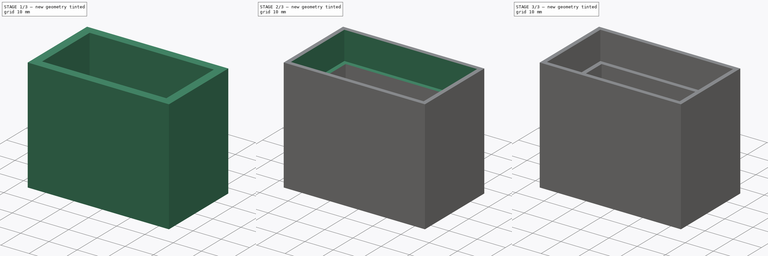
[diagram: build sequence overview — one tinted view per stage of 3, left to right]
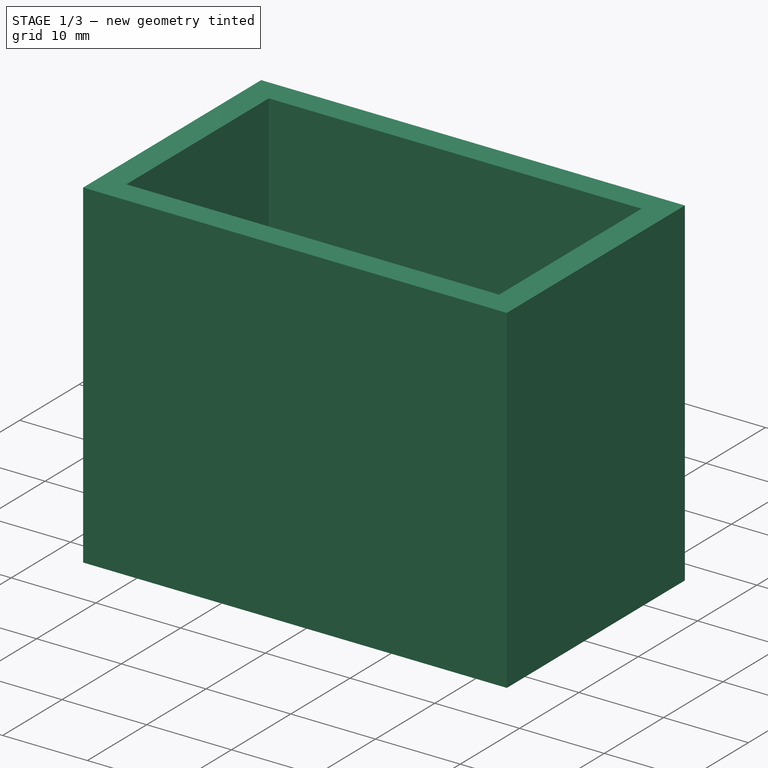
[diagram: stage 1 of 3 — iso view after this stage's code; geometry added in this stage tinted green]
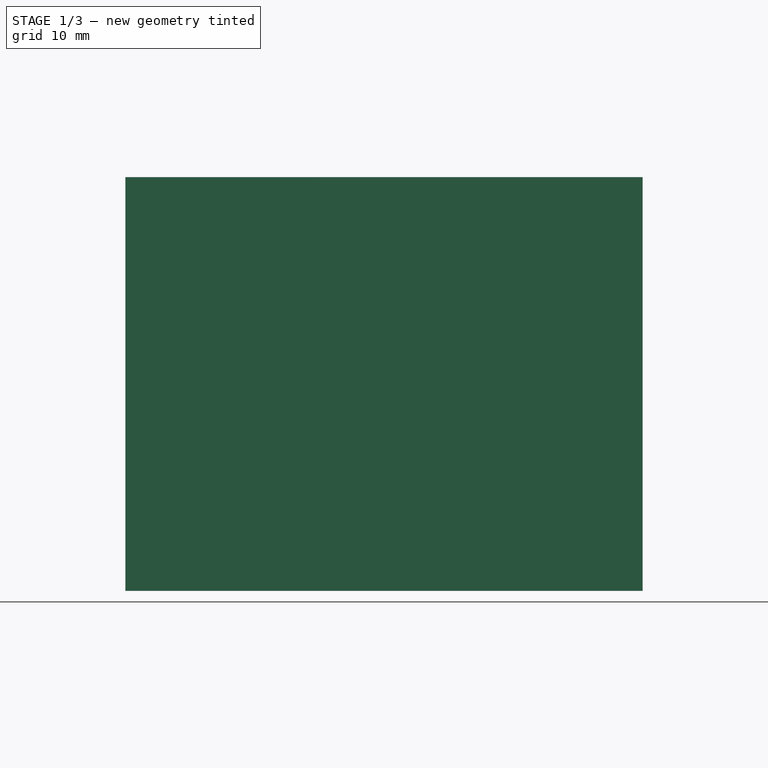
[diagram: stage 1 of 3 — front view after this stage's code; geometry added in this stage tinted green]
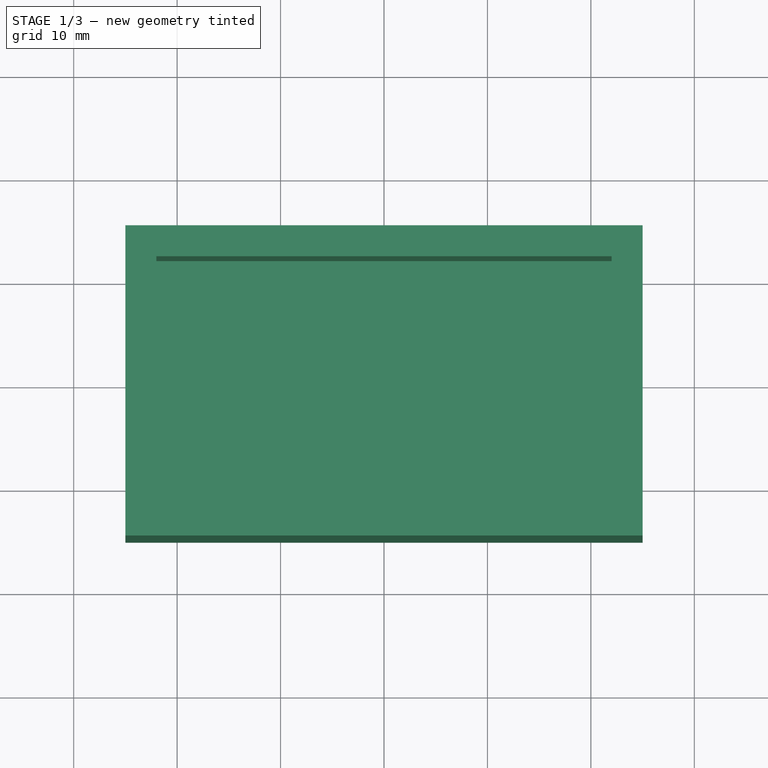
[diagram: stage 1 of 3 — top view after this stage's code; geometry added in this stage tinted green]
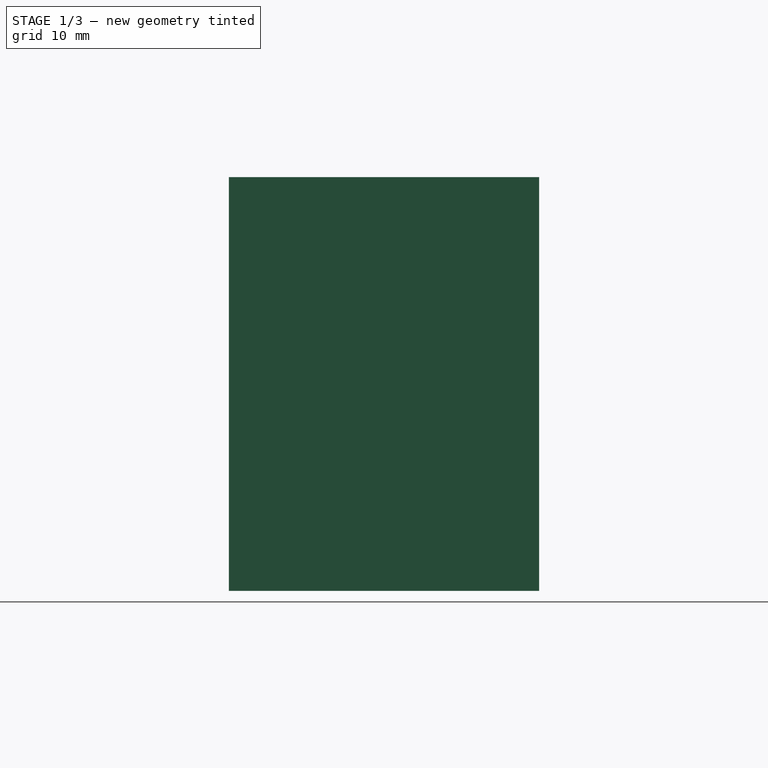
[diagram: stage 1 of 3 — right view after this stage's code; geometry added in this stage tinted green]
FCSTD DOCUMENT  (FreeCAD 0.17R13541 (Git))
Label: boite
License: All rights reserved
LicenseURL: http://en.wikipedia.org/wiki/All_rights_reserved
objects: Sketcher::SketchObject×5, Part::Mirroring×3, PartDesign::Pad×2, PartDesign::Pocket×2, PartDesign::Body×1, App::DocumentObjectGroup×1
note: 17 computed .brp shape members not serialized (recipe doc carries the construction recipe); baked Part::Feature solids carry a one-line shape summary decoded from their .brp

FEATURE [Sketcher::SketchObject] Sketch
  MapMode = 5
  Support = -> [XY_Plane]
  sketch-geometry (4):
    g0: LineSegment StartX=-25 StartY=15 StartZ=0 EndX=25 EndY=15 EndZ=0
    g1: LineSegment StartX=25 StartY=15 StartZ=0 EndX=25 EndY=-15 EndZ=0
    g2: LineSegment StartX=25 StartY=-15 StartZ=0 EndX=-25 EndY=-15 EndZ=0
    g3: LineSegment StartX=-25 StartY=-15 StartZ=0 EndX=-25 EndY=15 EndZ=0
  constraints (12):
    c: Coincident(g0,g1)
    c: Coincident(g1,g2)
    c: Coincident(g2,g3)
    c: Coincident(g3,g0)
    c: Horizontal(g0)
    c: Horizontal(g2)
    c: Vertical(g1)
    c: Vertical(g3)
    c: DistanceX(g0,g0) = 50
    c: DistanceY(g1,g1) = 30
    c: Symmetric(g0,g0,g-2)
    c: Symmetric(g0,g1,g-1)
FEATURE [PartDesign::Pad] Pad  label="Dessous ext"
  Length = 40
  Length2 = 100
  Profile = -> Sketch
  Type = 0
FEATURE [Sketcher::SketchObject] Sketch001
  MapMode = 5
  Support = -> [XY_Plane]
  sketch-geometry (4):
    g0: LineSegment StartX=-22 StartY=12 StartZ=0 EndX=22 EndY=12 EndZ=0
    g1: LineSegment StartX=22 StartY=12 StartZ=0 EndX=22 EndY=-12 EndZ=0
    g2: LineSegment StartX=22 StartY=-12 StartZ=0 EndX=-22 EndY=-12 EndZ=0
    g3: LineSegment StartX=-22 StartY=-12 StartZ=0 EndX=-22 EndY=12 EndZ=0
  constraints (12):
    c: Coincident(g0,g1)
    c: Coincident(g1,g2)
    c: Coincident(g2,g3)
    c: Coincident(g3,g0)
    c: Horizontal(g0)
    c: Horizontal(g2)
    c: Vertical(g1)
    c: Vertical(g3)
    c: DistanceX(g0,g0) = 44
    c: DistanceY(g1,g1) = 24
    c: Symmetric(g0,g0,g-2)
    c: Symmetric(g0,g1,g-1)
FEATURE [Sketcher::SketchObject] Sketch002
  MapMode = 5
  Placement = pos=(0,0,40) rot=(0,0,1;0rad)
  Support = -> [Pad]
  sketch-geometry (4):
    g0: LineSegment StartX=-22 StartY=12 StartZ=0 EndX=22 EndY=12 EndZ=0
    g1: LineSegment StartX=22 StartY=12 StartZ=0 EndX=22 EndY=-12 EndZ=0
    g2: LineSegment StartX=22 StartY=-12 StartZ=0 EndX=-22 EndY=-12 EndZ=0
    g3: LineSegment StartX=-22 StartY=-12 StartZ=0 EndX=-22 EndY=12 EndZ=0
  constraints (12):
    c: Coincident(g0,g1)
    c: Coincident(g1,g2)
    c: Coincident(g2,g3)
    c: Coincident(g3,g0)
    c: Horizontal(g0)
    c: Horizontal(g2)
    c: Vertical(g1)
    c: Vertical(g3)
    c: DistanceY(g1,g1) = 24
    c: DistanceX(g0,g0) = 44
    c: Symmetric(g0,g0,g-2)
    c: Symmetric(g0,g1,g-1)
FEATURE [PartDesign::Pocket] Pocket
  BaseFeature = -> Pad
  Length = 27
  Length2 = 100
  Profile = -> Sketch002
  Type = 0
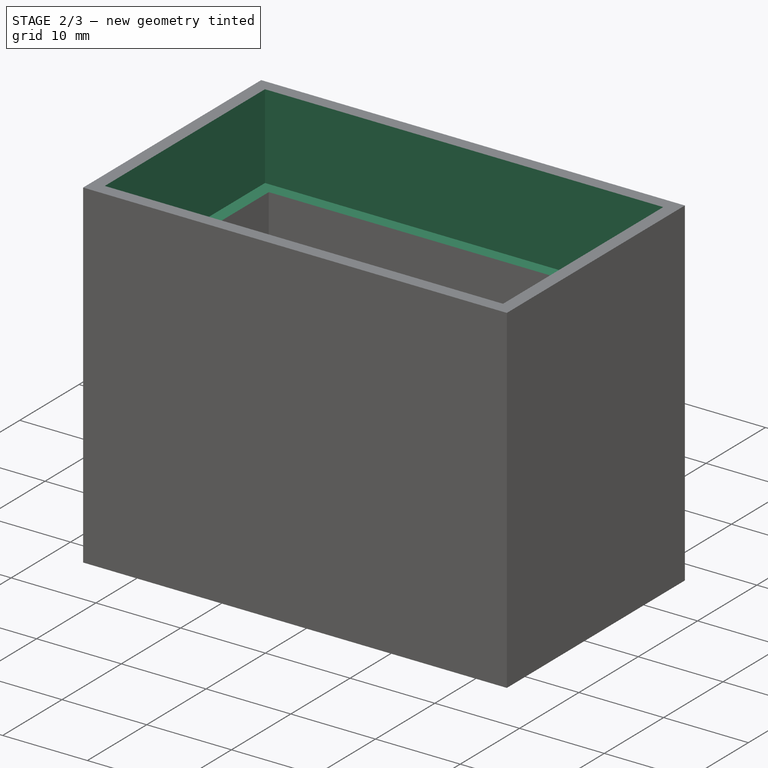
[diagram: stage 2 of 3 — iso view after this stage's code; geometry added in this stage tinted green]
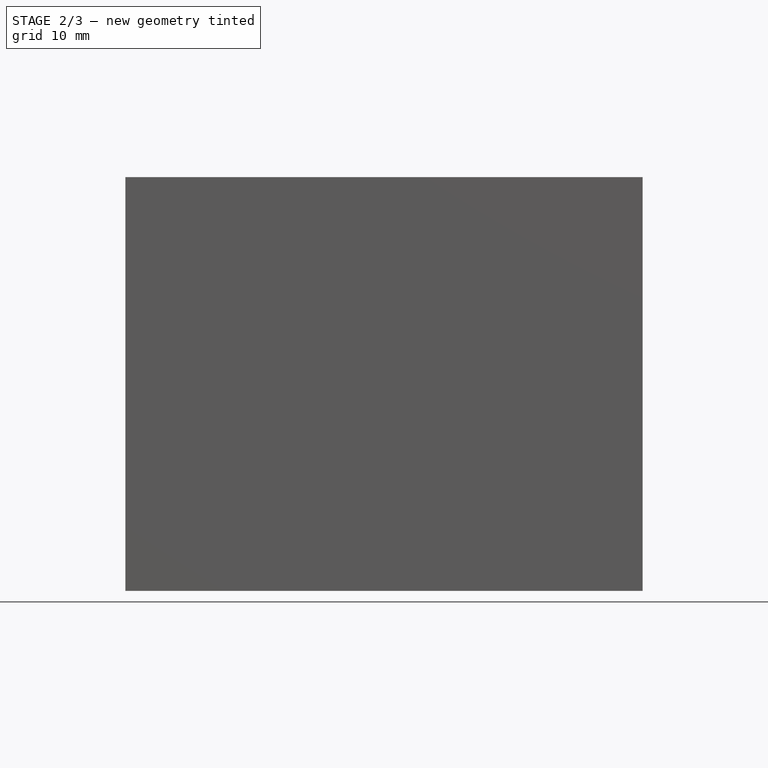
[diagram: stage 2 of 3 — front view after this stage's code; geometry added in this stage tinted green]
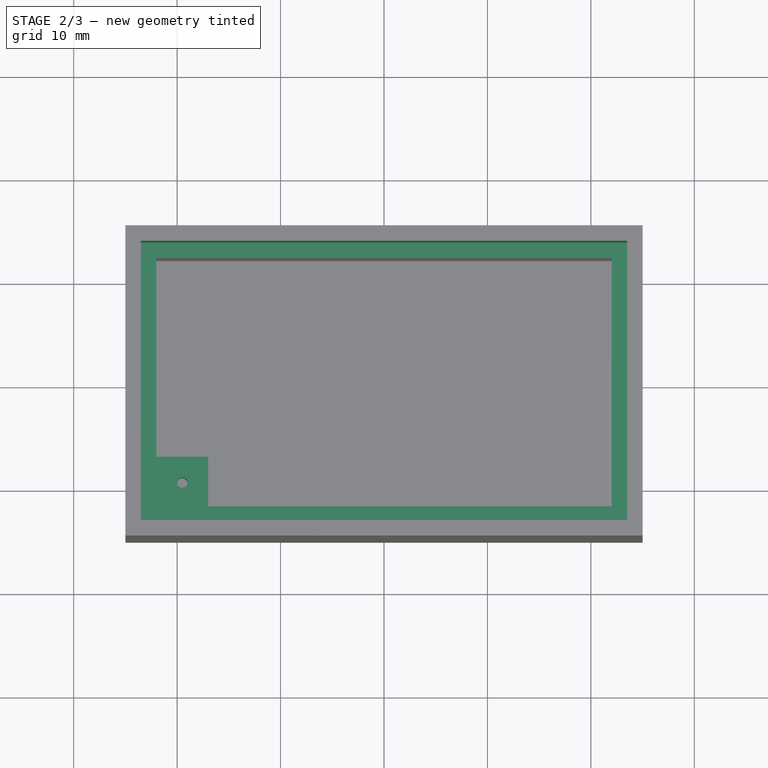
[diagram: stage 2 of 3 — top view after this stage's code; geometry added in this stage tinted green]
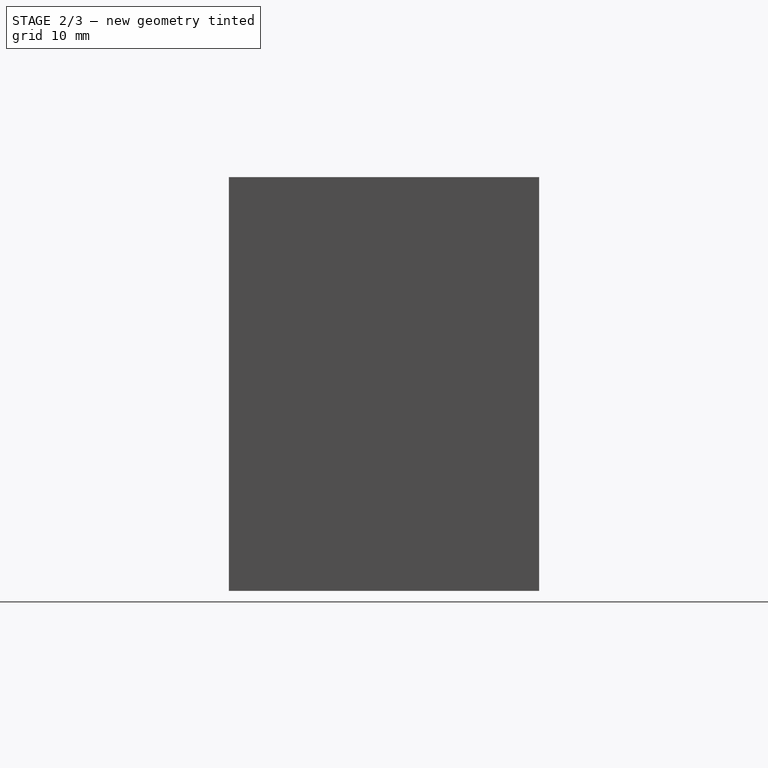
[diagram: stage 2 of 3 — right view after this stage's code; geometry added in this stage tinted green]
FEATURE [Sketcher::SketchObject] Sketch003
  MapMode = 5
  Placement = pos=(0,0,40) rot=(0,0,1;0rad)
  Support = -> [Pocket]
  sketch-geometry (4):
    g0: LineSegment StartX=-23.5 StartY=13.5 StartZ=0 EndX=23.5 EndY=13.5 EndZ=0
    g1: LineSegment StartX=23.5 StartY=13.5 StartZ=0 EndX=23.5 EndY=-13.5 EndZ=0
    g2: LineSegment StartX=23.5 StartY=-13.5 StartZ=0 EndX=-23.5 EndY=-13.5 EndZ=0
    g3: LineSegment StartX=-23.5 StartY=-13.5 StartZ=0 EndX=-23.5 EndY=13.5 EndZ=0
  constraints (12):
    c: Coincident(g0,g1)
    c: Coincident(g1,g2)
    c: Coincident(g2,g3)
    c: Coincident(g3,g0)
    c: Horizontal(g0)
    c: Horizontal(g2)
    c: Vertical(g1)
    c: Vertical(g3)
    c: DistanceX(g0,g0) = 47
    c: DistanceY(g1,g1) = 27
    c: Symmetric(g0,g0,g-2)
    c: Symmetric(g0,g1,g-1)
FEATURE [PartDesign::Pocket] Pocket001
  BaseFeature = -> Pocket
  Length = 10
  Length2 = 100
  Profile = -> Sketch003
  Type = 0
FEATURE [PartDesign::Body] Body
  Group = -> [Sketch,Pad,Sketch001,Sketch002,Pocket,Sketch003,Pocket001]
  Origin = -> Origin
  Tip = -> Pocket001
FEATURE [Sketcher::SketchObject] Sketch005
  MapMode = 5
  Placement = pos=(0,0,13) rot=(0,0,1;0rad)
  Support = -> [Pocket001]
  sketch-geometry (8):
    g0: LineSegment StartX=-22 StartY=12 StartZ=0 EndX=-17 EndY=12 EndZ=0
    g1: LineSegment StartX=-17 StartY=12 StartZ=0 EndX=-17 EndY=7 EndZ=0
    g2: LineSegment StartX=-17 StartY=7 StartZ=0 EndX=-22 EndY=7 EndZ=0
    g3: LineSegment StartX=-22 StartY=7 StartZ=0 EndX=-22 EndY=12 EndZ=0
    g4: LineSegment [constr] StartX=-22 StartY=12 StartZ=0 EndX=-17 EndY=7 EndZ=0
    g5: LineSegment [constr] StartX=-17 StartY=12 StartZ=0 EndX=-22 EndY=7 EndZ=0
    g6: GeomPoint X=-19.5 Y=9.5 Z=0
    g7: Circle CenterX=-19.5 CenterY=9.5 CenterZ=0 NormalX=0 NormalY=0 NormalZ=1 AngleXU=0 Radius=0.5
  constraints (20):
    c: Coincident(g0,g1)
    c: Coincident(g1,g2)
    c: Coincident(g2,g3)
    c: Coincident(g3,g0)
    c: Horizontal(g0)
    c: Horizontal(g2)
    c: Vertical(g1)
    c: Vertical(g3)
    c: DistanceY(g1,g1) = 5
    c: DistanceX(g0,g0) = 5
    c: Coincident(g4,g0)
    c: Coincident(g4,g1)
    c: Coincident(g5,g0)
    c: Coincident(g5,g2)
    c: PointOnObject(g6,g4)
    c: PointOnObject(g6,g5)
    c: Coincident(g7,g6)
    c: Radius(g7) = 0.5
    c: DistanceX(g0,g-1) = 22
    c: DistanceY(g-1,g0) = 12
FEATURE [PartDesign::Pad] Pad001  label="support"
  BaseFeature = -> Pocket001
  Length = 5
  Length2 = 100
  Profile = -> Sketch005
  Type = 0
FEATURE [Part::Mirroring] Part__Mirroring002  label="support (Mirror #3)"
  Base = (0,0,0)
  Normal = (0,1,0)
  Source = -> Pad001
FEATURE [App::DocumentObjectGroup] Groupe  label="supports"
  Group = -> [Part__Mirroring001,Part__Mirroring002,Pad001,Sketch005]
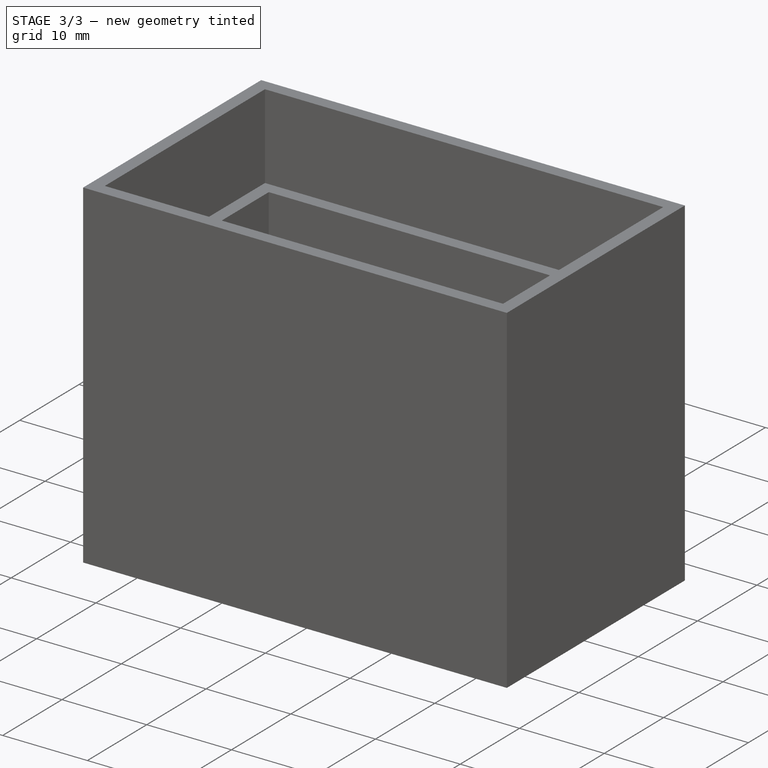
[diagram: stage 3 of 3 — iso view after this stage's code; geometry added in this stage tinted green]
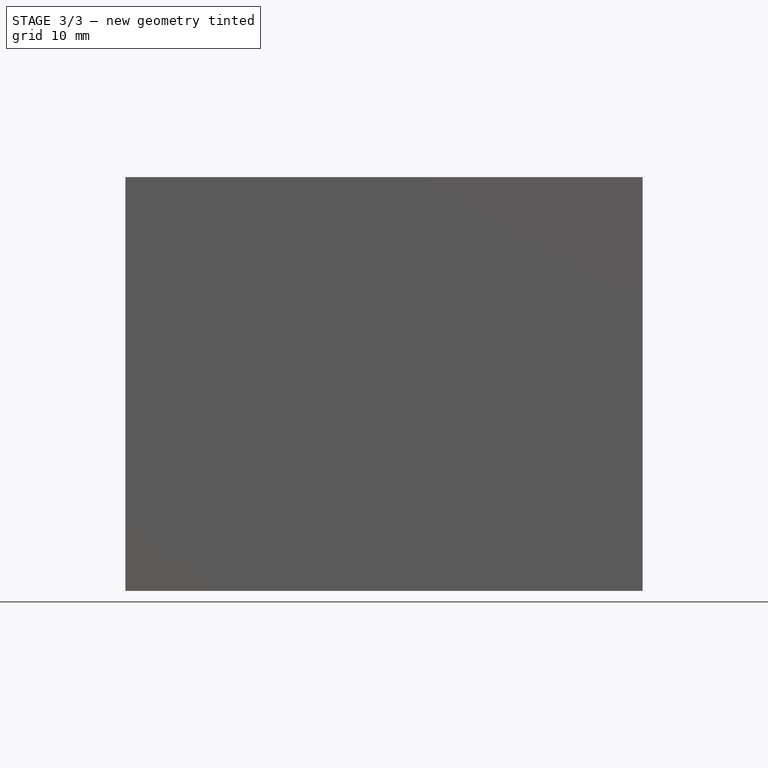
[diagram: stage 3 of 3 — front view after this stage's code; geometry added in this stage tinted green]
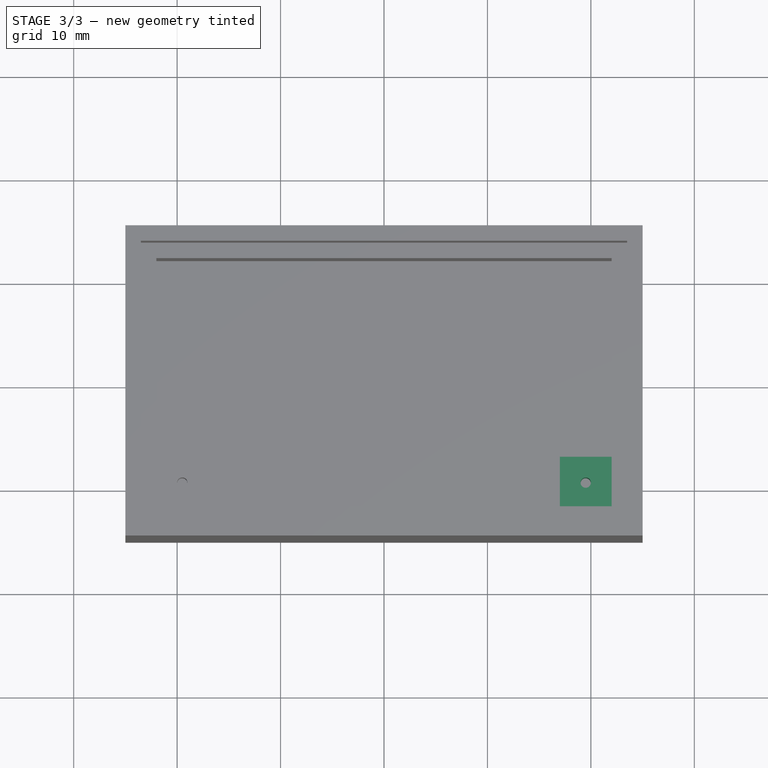
[diagram: stage 3 of 3 — top view after this stage's code; geometry added in this stage tinted green]
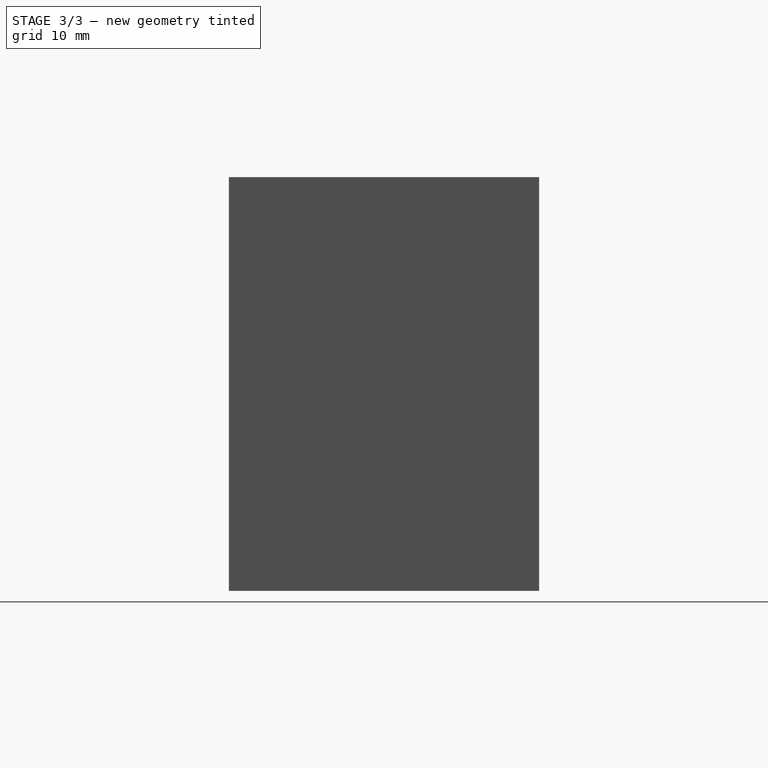
[diagram: stage 3 of 3 — right view after this stage's code; geometry added in this stage tinted green]
FEATURE [Part::Mirroring] Part__Mirroring  label="support (Mirror #1)"
  Base = (0,0,0)
  Normal = (1,0,0)
  Source = -> Pad001
FEATURE [Part::Mirroring] Part__Mirroring001  label="support (Mirror #2)"
  Base = (0,0,0)
  Normal = (0,1,0)
  Source = -> Part__Mirroring
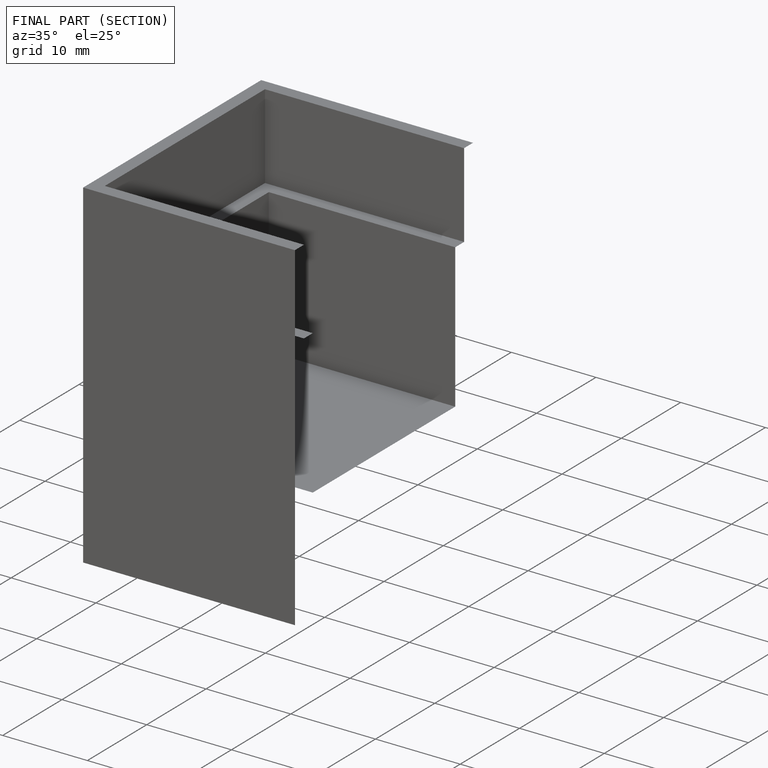
[diagram: finished part — half-section view (interior)]
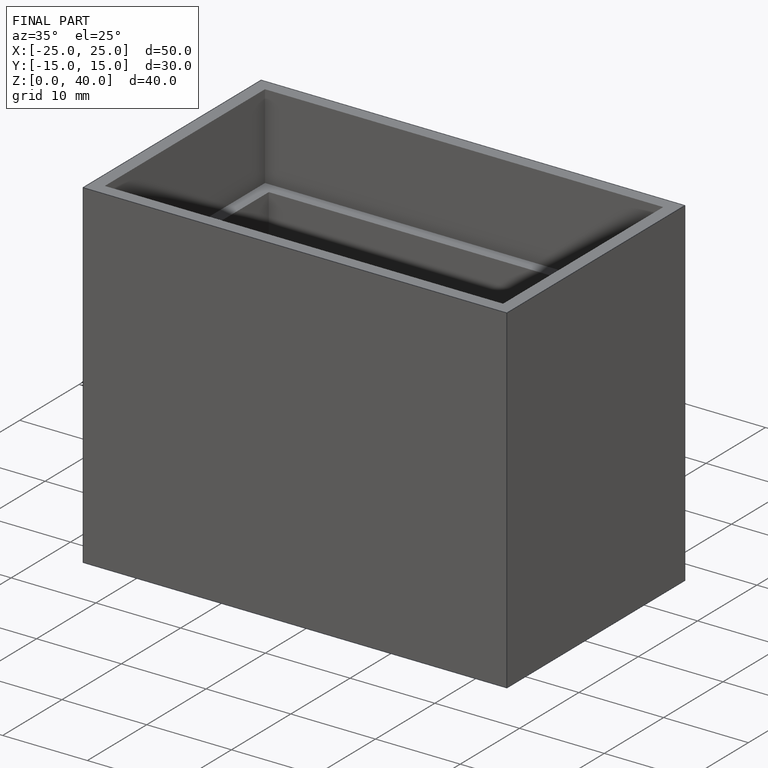
[diagram: finished part — iso view with bounding-box wireframe]
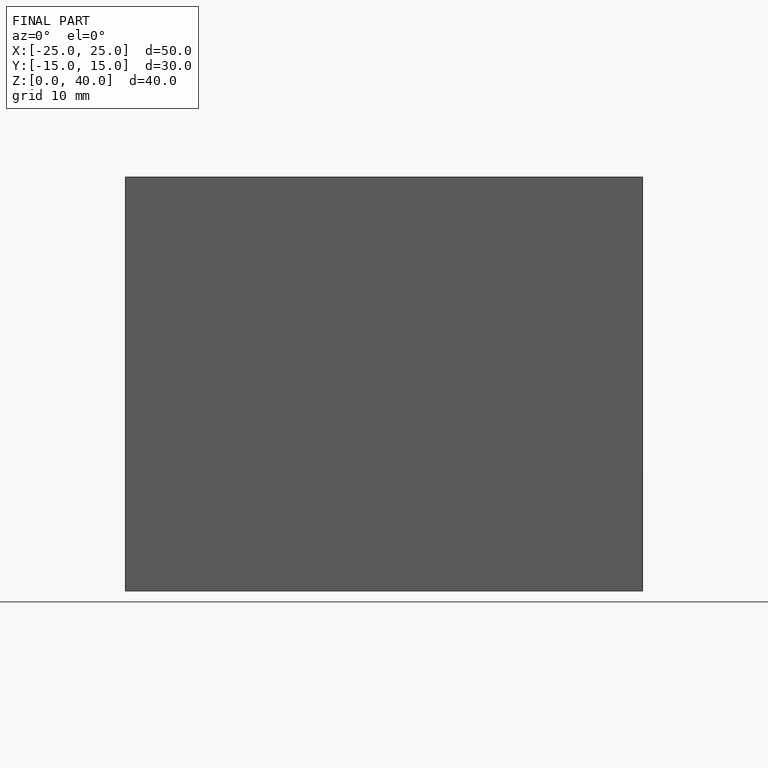
[diagram: finished part — front view with bounding-box wireframe]
